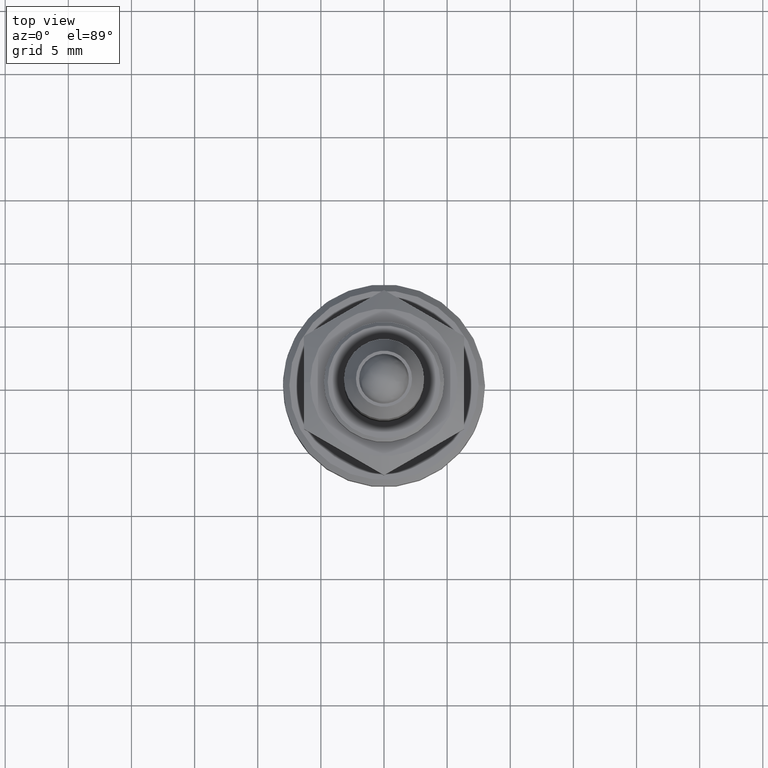
[diagram: clean part render]
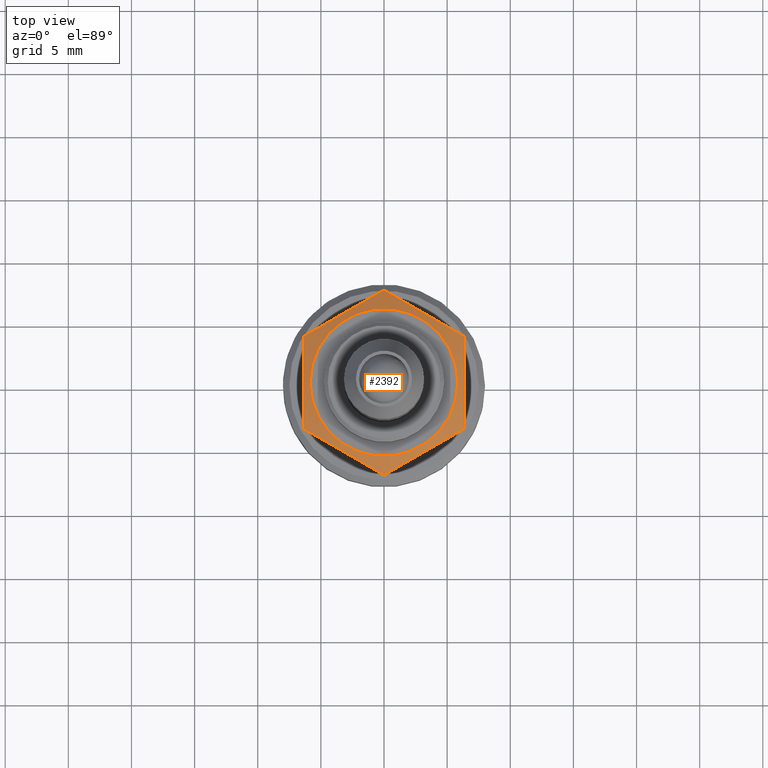
[diagram: same view with one face highlighted and labeled with its STEP entity id]
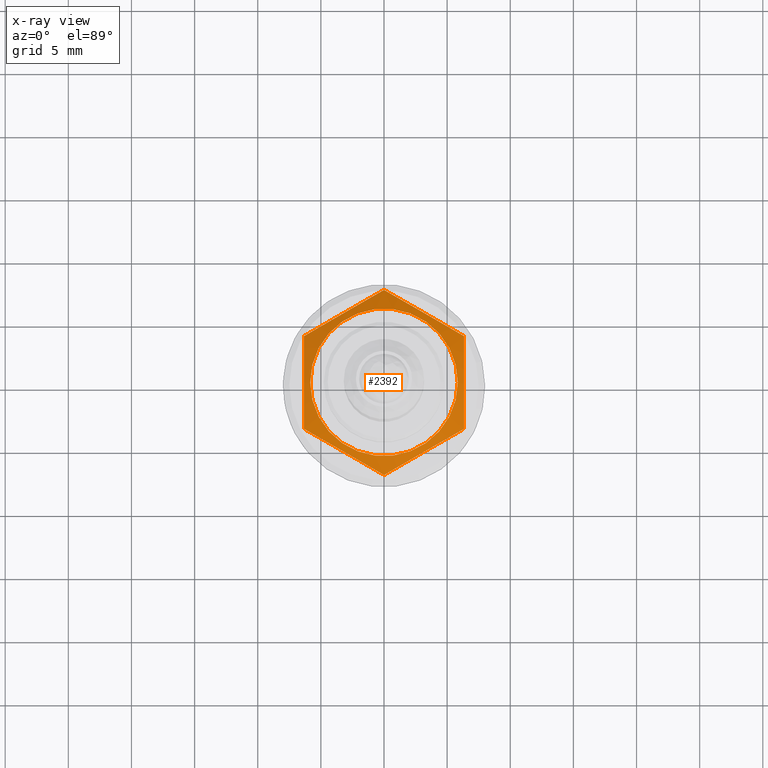
[diagram: x-ray of the same camera — body ghosted, the highlighted face saturated]
A machine part, top view. The second image highlights one B-rep face of the part: STEP entity #2392.
The next image is the same camera in x-ray: the body ghosted, the highlighted face saturated — about 0% of this face is hidden behind the body in this view.
In plain terms, the highlighted conical surface has half-angle 60 deg.
Its self-contained STEP definition (entity closure, byte-faithful):
#27 = CARTESIAN_POINT ( 'NONE',  ( -6.350000000006223999, -3.666174209357553782, -19.27545306067893804 ) ) ;
#51 = CARTESIAN_POINT ( 'NONE',  ( 0.5190639609671696686, 7.032666701117203267, -19.10243174035693414 ) ) ;
#66 = CARTESIAN_POINT ( 'NONE',  ( 6.350000000006169820, -3.666174209357353053, -19.27545306067885633 ) ) ;
#120 = CARTESIAN_POINT ( 'NONE',  ( -4.246534414800099633, 4.880610631199963301, -18.77304839253510238 ) ) ;
#125 = DIRECTION ( 'NONE',  ( 0.000000000000000000, 0.000000000000000000, -1.000000000000000000 ) ) ;
#215 = CARTESIAN_POINT ( 'NONE',  ( -4.254101407321294381, -4.876241826031222359, -18.76292166515079174 ) ) ;
#276 = CARTESIAN_POINT ( 'NONE',  ( 0.000000000000000000, 0.000000000000000000, -18.41499999995646419 ) ) ;
#287 = CARTESIAN_POINT ( 'NONE',  ( 6.350000000006223999, 3.666174209357553782, -19.27545306067893804 ) ) ;
#308 = CARTESIAN_POINT ( 'NONE',  ( 0.5184175903310557221, -7.033039883366162925, -19.10264719724014171 ) ) ;
#374 = B_SPLINE_CURVE_WITH_KNOTS ( 'NONE', 3,
 ( #1313, #1126, #573, #745, #521, #1116, #1335, #120, #1522, #1886, #2299, #1922 ),
 .UNSPECIFIED., .F., .F.,
 ( 4, 2, 2, 2, 2, 4 ),
 ( 9.768864128669096979E-15, 0.001851315103371415239, 0.003702630206733061383, 0.004628287758413883804, 0.005553945310094706225, 0.007405260413456347598 ),
 .UNSPECIFIED. ) ;
#379 = CARTESIAN_POINT ( 'NONE',  ( -6.350000000006223999, -3.666174209357553782, -19.27545306067893804 ) ) ;
#403 = B_SPLINE_CURVE_WITH_KNOTS ( 'NONE', 3,
 ( #287, #1069, #647, #1446, #2183, #1255, #2426, #832, #1035, #1056, #51, #2195 ),
 .UNSPECIFIED., .F., .F.,
 ( 4, 2, 2, 2, 2, 4 ),
 ( 9.807523050822724246E-15, 0.001851315103370581054, 0.003702630206731354848, 0.004628287758411739686, 0.005553945310092125824, 0.007405260413452898101 ),
 .UNSPECIFIED. ) ;
#421 = CARTESIAN_POINT ( 'NONE',  ( -3.720933469662540904, -5.184066478361795127, -18.70869338380154190 ) ) ;
#433 = CARTESIAN_POINT ( 'NONE',  ( -1.837029972698496438, -6.271738669461311311, -18.81143345166810121 ) ) ;
#438 = VERTEX_POINT ( 'NONE', #1978 ) ;
#458 = VERTEX_POINT ( 'NONE', #1405 ) ;
#478 = CARTESIAN_POINT ( 'NONE',  ( -1.454635376109820418E-13, -7.332348418715273652, -19.27545306067889541 ) ) ;
#486 = CARTESIAN_POINT ( 'NONE',  ( 6.349999999989968558, -2.468361682194254225, -18.92967436819288807 ) ) ;
#491 = VERTEX_POINT ( 'NONE', #1225 ) ;
#506 = CARTESIAN_POINT ( 'NONE',  ( 0.000000000000000000, 0.000000000000000000, -19.28061577899597978 ) ) ;
#521 = CARTESIAN_POINT ( 'NONE',  ( -2.629066530338521002, 5.814456149699471332, -18.70869338380128610 ) ) ;
#568 = CARTESIAN_POINT ( 'NONE',  ( -2.103465585201718113, -6.117911996860866175, -18.77304839253503488 ) ) ;
#573 = CARTESIAN_POINT ( 'NONE',  ( -1.040614601280551055, 6.731549298535912662, -18.96022397805628046 ) ) ;
#598 = CARTESIAN_POINT ( 'NONE',  ( -6.350000000006223999, -3.666174209357553782, -19.27545306067893804 ) ) ;
#647 = CARTESIAN_POINT ( 'NONE',  ( 5.309385398719748572, 4.266973329525793446, -18.96022397805651849 ) ) ;
#670 = EDGE_LOOP ( 'NONE', ( #1497 ) ) ;
#694 = AXIS2_PLACEMENT_3D ( 'NONE', #506, #125, #910 ) ;
#745 = CARTESIAN_POINT ( 'NONE',  ( -2.095898592679509065, 6.122280802030194202, -18.76292166515051463 ) ) ;
#762 = VERTEX_POINT ( 'NONE', #1373 ) ;
#784 = CARTESIAN_POINT ( 'NONE',  ( -6.350000000000000533, -2.468361682194938567, -18.92967436818691240 ) ) ;
#832 = CARTESIAN_POINT ( 'NONE',  ( 2.103465585201718113, 6.117911996860866175, -18.77304839253503488 ) ) ;
#852 = B_SPLINE_CURVE_WITH_KNOTS ( 'NONE', 3,
 ( #598, #1401, #1372, #215, #421, #1972, #2173, #568, #433, #1209, #1984, #1347 ),
 .UNSPECIFIED., .F., .F.,
 ( 4, 2, 2, 2, 2, 4 ),
 ( 9.807523050822724246E-15, 0.001851315103370581054, 0.003702630206731354848, 0.004628287758411739686, 0.005553945310092125824, 0.007405260413452898101 ),
 .UNSPECIFIED. ) ;
#886 = CARTESIAN_POINT ( 'NONE',  ( 6.350000000000000533, 2.468361682193751516, -18.92967436818657134 ) ) ;
#910 = DIRECTION ( 'NONE',  ( -1.000000000000000000, 0.000000000000000000, 0.000000000000000000 ) ) ;
#966 = CARTESIAN_POINT ( 'NONE',  ( -6.349999999999997868, -1.251304677058781678, -18.70829393671201046 ) ) ;
#975 = VERTEX_POINT ( 'NONE', #2351 ) ;
#1035 = CARTESIAN_POINT ( 'NONE',  ( 1.837029972698496438, 6.271738669461311311, -18.81143345166810121 ) ) ;
#1056 = CARTESIAN_POINT ( 'NONE',  ( 1.042466646458124924, 6.730480019754415011, -18.95965590877912987 ) ) ;
#1058 = CARTESIAN_POINT ( 'NONE',  ( 1.454903457346731295E-13, 7.332348418715273652, -19.27545306067889541 ) ) ;
#1062 = CARTESIAN_POINT ( 'NONE',  ( 3.710066040102286244, -5.190340791743481397, -18.72135420393268035 ) ) ;
#1069 = CARTESIAN_POINT ( 'NONE',  ( 5.831582409658856214, 3.965482744678559435, -19.10264719724026961 ) ) ;
#1081 = CARTESIAN_POINT ( 'NONE',  ( 2.095898592678603123, -6.122280802030716451, -18.76292166515063897 ) ) ;
#1108 = ORIENTED_EDGE ( 'NONE', *, *, #1870, .T. ) ;
#1110 = EDGE_CURVE ( 'NONE', #975, #762, #1254, .T. ) ;
#1116 = CARTESIAN_POINT ( 'NONE',  ( -3.438862834608905850, 5.346920035440180463, -18.70809756234310228 ) ) ;
#1126 = CARTESIAN_POINT ( 'NONE',  ( -0.5184175903312772116, 7.033039883366037692, -19.10264719724006355 ) ) ;
#1209 = CARTESIAN_POINT ( 'NONE',  ( -1.042466646458124924, -6.730480019754415011, -18.95965590877912987 ) ) ;
#1225 = CARTESIAN_POINT ( 'NONE',  ( 6.350000000006223999, 3.666174209357553782, -19.27545306067893804 ) ) ;
#1254 = B_SPLINE_CURVE_WITH_KNOTS ( 'NONE', 3,
 ( #478, #308, #1276, #1081, #1441, #1653, #1062, #1429, #1860, #2024, #1451, #2421 ),
 .UNSPECIFIED., .F., .F.,
 ( 4, 2, 2, 2, 2, 4 ),
 ( 9.768864536265103250E-15, 0.001851315103370622037, 0.003702630206731474978, 0.004628287758411901882, 0.005553945310092328787, 0.007405260413453185198 ),
 .UNSPECIFIED. ) ;
#1255 = CARTESIAN_POINT ( 'NONE',  ( 2.911137165392555737, 5.651602592620855958, -18.70809756234323018 ) ) ;
#1270 = EDGE_CURVE ( 'NONE', #1994, #458, #374, .T. ) ;
#1276 = CARTESIAN_POINT ( 'NONE',  ( 1.040614601280105411, -6.731549298536168457, -18.96022397805639770 ) ) ;
#1313 = CARTESIAN_POINT ( 'NONE',  ( 1.454903457346731295E-13, 7.332348418715273652, -19.27545306067889541 ) ) ;
#1335 = CARTESIAN_POINT ( 'NONE',  ( -3.710066040103898288, 5.190340791742549698, -18.72135420393277982 ) ) ;
#1341 = B_SPLINE_CURVE_WITH_KNOTS ( 'NONE', 3,
 ( #2160, #1942, #1741, #966, #784, #27 ),
 .UNSPECIFIED., .F., .F.,
 ( 4, 2, 4 ),
 ( -0.003709784738392341019, 3.280362093072142216E-15, 0.003709784738398901743 ),
 .UNSPECIFIED. ) ;
#1346 = ORIENTED_EDGE ( 'NONE', *, *, #1110, .T. ) ;
#1347 = CARTESIAN_POINT ( 'NONE',  ( -1.454635376109820418E-13, -7.332348418715273652, -19.27545306067889541 ) ) ;
#1372 = CARTESIAN_POINT ( 'NONE',  ( -5.309385398719748572, -4.266973329525793446, -18.96022397805651849 ) ) ;
#1373 = CARTESIAN_POINT ( 'NONE',  ( 6.350000000006169820, -3.666174209357353053, -19.27545306067885633 ) ) ;
#1401 = CARTESIAN_POINT ( 'NONE',  ( -5.831582409658856214, -3.965482744678559435, -19.10264719724026961 ) ) ;
#1405 = CARTESIAN_POINT ( 'NONE',  ( -6.350000000006169820, 3.666174209350233859, -19.27545306067679931 ) ) ;
#1429 = CARTESIAN_POINT ( 'NONE',  ( 4.246534414798274426, -4.880610631201018457, -18.77304839253487501 ) ) ;
#1441 = CARTESIAN_POINT ( 'NONE',  ( 2.629066530337378360, -5.814456149700129473, -18.70869338380137847 ) ) ;
#1446 = CARTESIAN_POINT ( 'NONE',  ( 4.254101407321294381, 4.876241826031222359, -18.76292166515079174 ) ) ;
#1451 = CARTESIAN_POINT ( 'NONE',  ( 5.830936039031460183, -3.965855926945468291, -19.10243174035638702 ) ) ;
#1454 = FACE_BOUND ( 'NONE', #670, .T. ) ;
#1497 = ORIENTED_EDGE ( 'NONE', *, *, #1896, .T. ) ;
#1522 = CARTESIAN_POINT ( 'NONE',  ( -4.512970027303436105, 4.726783958599451552, -18.81143345166823622 ) ) ;
#1525 = ORIENTED_EDGE ( 'NONE', *, *, #1605, .T. ) ;
#1554 = B_SPLINE_CURVE_WITH_KNOTS ( 'NONE', 3,
 ( #66, #486, #1849, #2443, #886, #1659 ),
 .UNSPECIFIED., .F., .F.,
 ( 4, 2, 4 ),
 ( -0.003709784738399692777, -3.955169525227120175E-16, 0.003709784738398901743 ),
 .UNSPECIFIED. ) ;
#1559 = ORIENTED_EDGE ( 'NONE', *, *, #2338, .T. ) ;
#1605 = EDGE_CURVE ( 'NONE', #762, #491, #1554, .T. ) ;
#1653 = CARTESIAN_POINT ( 'NONE',  ( 3.438862834607402164, -5.346920035441048213, -18.70809756234305610 ) ) ;
#1659 = CARTESIAN_POINT ( 'NONE',  ( 6.350000000006223999, 3.666174209357553782, -19.27545306067893804 ) ) ;
#1741 = CARTESIAN_POINT ( 'NONE',  ( -6.350000000000000533, 1.251304677058781012, -18.70829393671201757 ) ) ;
#1779 = EDGE_CURVE ( 'NONE', #458, #2218, #1341, .T. ) ;
#1798 = CIRCLE ( 'NONE', #1998, 5.841999999972813384 ) ;
#1849 = CARTESIAN_POINT ( 'NONE',  ( 6.350000000000000533, -1.251304677060020909, -18.70829393671202112 ) ) ;
#1860 = CARTESIAN_POINT ( 'NONE',  ( 4.512970027301509646, -4.726783958600565327, -18.81143345166793779 ) ) ;
#1870 = EDGE_CURVE ( 'NONE', #2218, #975, #852, .T. ) ;
#1886 = CARTESIAN_POINT ( 'NONE',  ( -5.307533353544161336, 4.268042608306143570, -18.95965590877952422 ) ) ;
#1896 = EDGE_CURVE ( 'NONE', #438, #438, #1798, .T. ) ;
#1922 = CARTESIAN_POINT ( 'NONE',  ( -6.350000000006169820, 3.666174209350233859, -19.27545306067679931 ) ) ;
#1942 = CARTESIAN_POINT ( 'NONE',  ( -6.349999999989993427, 2.468361682195491458, -18.92967436819322202 ) ) ;
#1972 = CARTESIAN_POINT ( 'NONE',  ( -2.911137165392555737, -5.651602592620855958, -18.70809756234323018 ) ) ;
#1978 = CARTESIAN_POINT ( 'NONE',  ( -5.841999999972813384, 0.000000000000000000, -18.41499999995646419 ) ) ;
#1984 = CARTESIAN_POINT ( 'NONE',  ( -0.5190639609671696686, -7.032666701117203267, -19.10243174035693414 ) ) ;
#1994 = VERTEX_POINT ( 'NONE', #1058 ) ;
#1998 = AXIS2_PLACEMENT_3D ( 'NONE', #276, #2186, #2429 ) ;
#2024 = CARTESIAN_POINT ( 'NONE',  ( 5.307533353541917798, -4.268042608307440311, -18.95965590877899487 ) ) ;
#2050 = EDGE_LOOP ( 'NONE', ( #2196, #2245, #1108, #1346, #1525, #1559 ) ) ;
#2160 = CARTESIAN_POINT ( 'NONE',  ( -6.350000000006169820, 3.666174209350233859, -19.27545306067679931 ) ) ;
#2173 = CARTESIAN_POINT ( 'NONE',  ( -2.639933959897683202, -5.808181836318420110, -18.72135420393284733 ) ) ;
#2183 = CARTESIAN_POINT ( 'NONE',  ( 3.720933469662540904, 5.184066478361795127, -18.70869338380154190 ) ) ;
#2186 = DIRECTION ( 'NONE',  ( 0.000000000000000000, 0.000000000000000000, -1.000000000000000000 ) ) ;
#2195 = CARTESIAN_POINT ( 'NONE',  ( 1.454903457346731295E-13, 7.332348418715273652, -19.27545306067889541 ) ) ;
#2196 = ORIENTED_EDGE ( 'NONE', *, *, #1270, .T. ) ;
#2218 = VERTEX_POINT ( 'NONE', #379 ) ;
#2240 = CONICAL_SURFACE ( 'NONE', #694, 7.341290509145892429, 1.047197551209108513 ) ;
#2245 = ORIENTED_EDGE ( 'NONE', *, *, #1779, .T. ) ;
#2299 = CARTESIAN_POINT ( 'NONE',  ( -5.830936039031241691, 3.965855926945593080, -19.10243174035630886 ) ) ;
#2338 = EDGE_CURVE ( 'NONE', #491, #1994, #403, .T. ) ;
#2351 = CARTESIAN_POINT ( 'NONE',  ( -1.454635376109820418E-13, -7.332348418715273652, -19.27545306067889541 ) ) ;
#2392 = ADVANCED_FACE ( 'NONE', ( #2489, #1454 ), #2240, .T. ) ;
#2421 = CARTESIAN_POINT ( 'NONE',  ( 6.350000000006169820, -3.666174209357353053, -19.27545306067885633 ) ) ;
#2426 = CARTESIAN_POINT ( 'NONE',  ( 2.639933959897683202, 5.808181836318420110, -18.72135420393284733 ) ) ;
#2429 = DIRECTION ( 'NONE',  ( -1.000000000000000000, 0.000000000000000000, 0.000000000000000000 ) ) ;
#2443 = CARTESIAN_POINT ( 'NONE',  ( 6.349999999999997868, 1.251304677060021575, -18.70829393671201757 ) ) ;
#2489 = FACE_OUTER_BOUND ( 'NONE', #2050, .T. ) ;